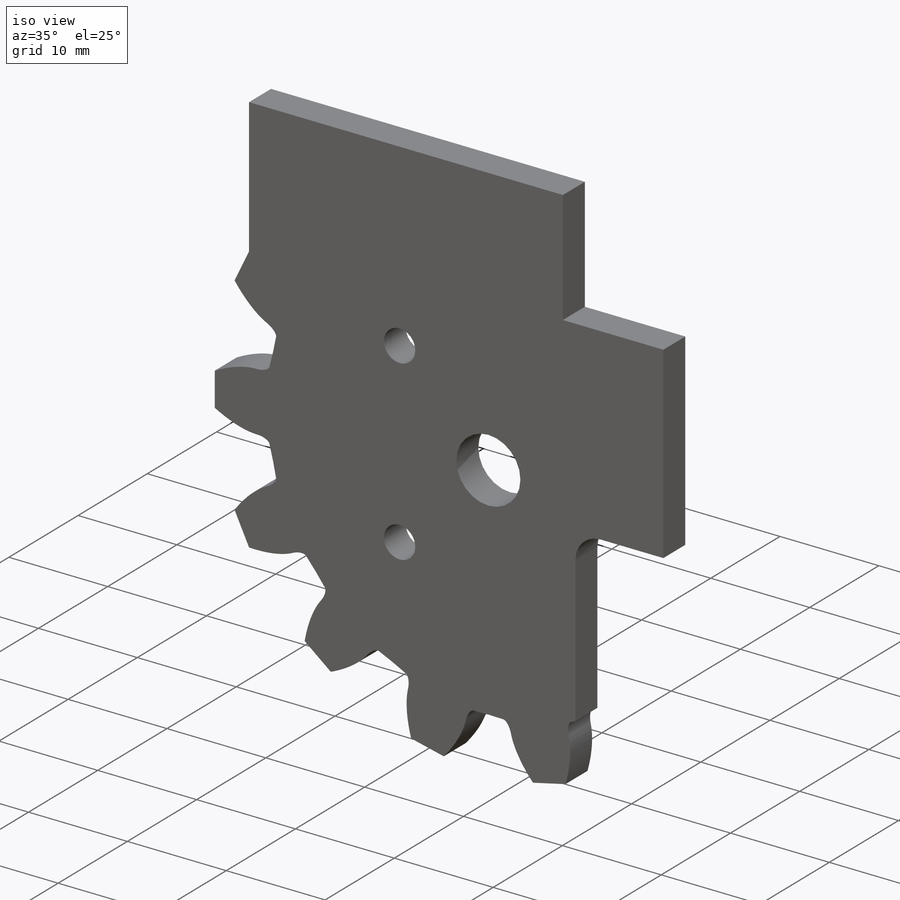
[diagram: iso view]
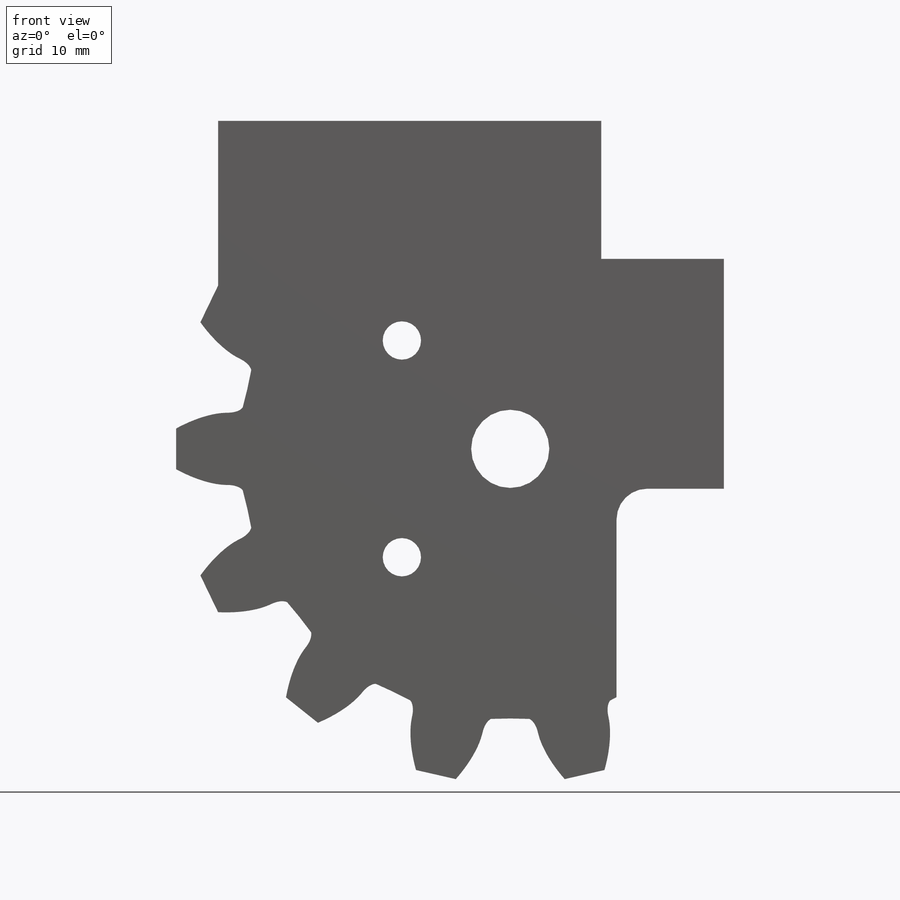
[diagram: front view]
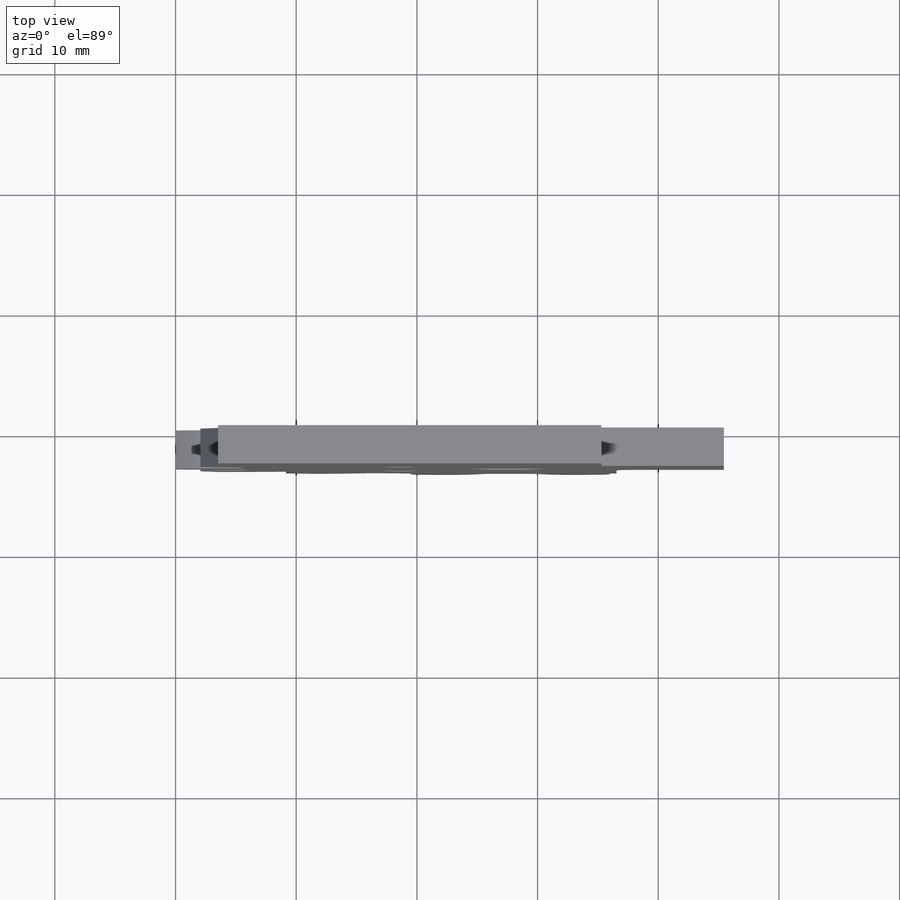
[diagram: top view]
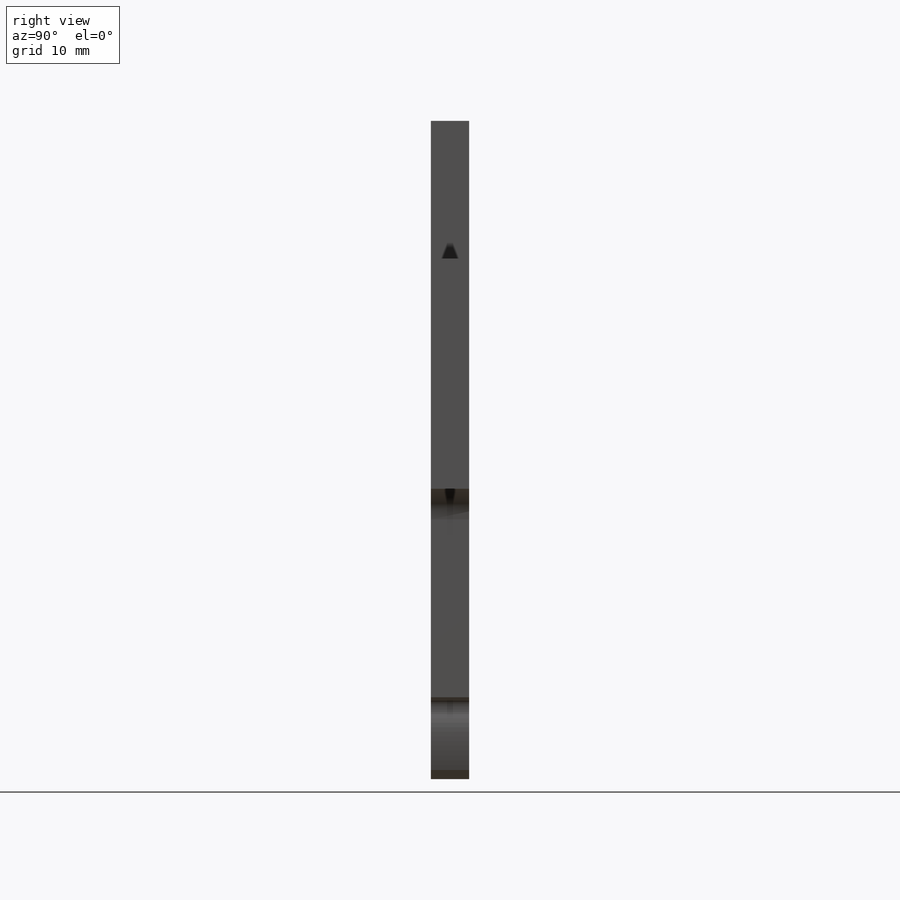
[diagram: right view]
SOLIDWORKS PART (.sldprt)
format: sldprt  version: not decoded by parser v0  size: 770,048 bytes
history: native  units: mm
features: sketch x5, cut_extrude x3, extrude x2, material x1, fillet x1 (+16 scaffold rows collapsed)
feature tree (28):
  scaffold x16  (default folders/planes/origin — collapsed)
  material  "Material <not specified>"
  sketch  "Sketch1"  dims[D1=6.477mm]
  extrude  "main gear body"  Depth=3.175mm
  sketch  "Sketch2"  dims[c1.D1=26.67mm c1.D2=~42.699686mm c2.D1=27.178mm]
  extrude  "buildup to meet bottom plate"  Depth=3.175mm
  sketch  "Sketch3"  dims[D1=41.91mm]
  cut_extrude  "cut to mate to face backplate"  [1 undecoded]
  sketch  "Sketch4"  dims[D1=8.89mm D2=25.4mm D3=30.48mm D4=11.43mm D5=10.16mm D6=8.89mm]
  cut_extrude  "cut for angle bracket clearance"  [1 undecoded]
  sketch  "Sketch5"  dims[c1.D2=~3.943759mm c1.D3=3.175mm c1.D4=3.175mm c1.D5=6.35mm c1.D1=15.24mm c2.D2=15.24mm c2.D5=10.16mm c2.D1=~24.093494mm c3.D1=45.0deg c3.D2=~24.093494mm c4.D2=45.0deg c4.D5=12.7mm c4.D6=12.7mm]
  cut_extrude  "cut for screws"  [1 undecoded]
  fillet  "Fillet1"  Radius=2.54mm
decode coverage: 8 of 11 modeling features carry decoded parameters
note: ~ marks probable driven/reference dimensions
note: 3 parameter values undecoded
summary: no parameter record found for 3 features
note: suppression state not decoded; provenance and decode notes live in map.json
